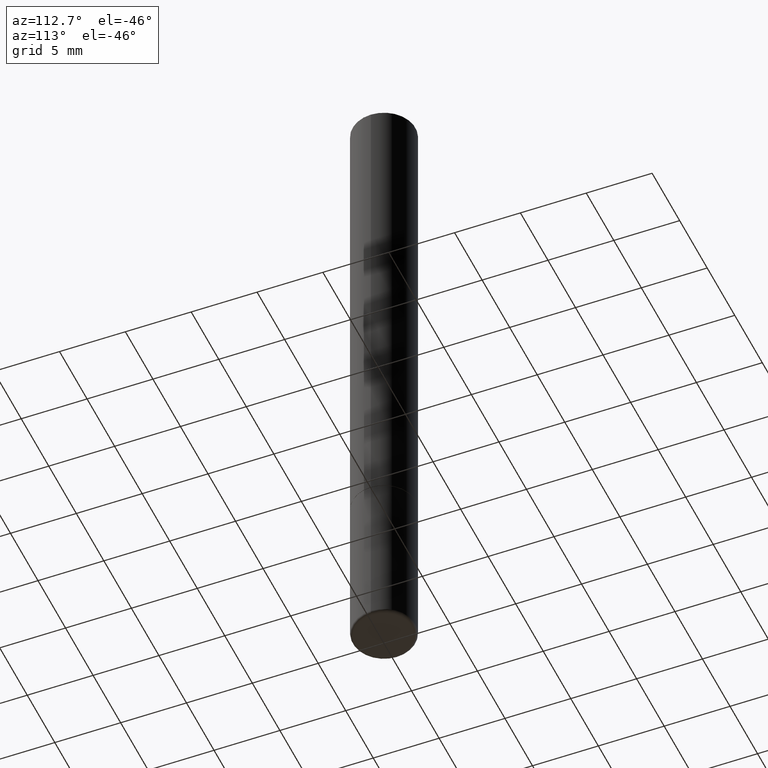
[diagram: clean part render]
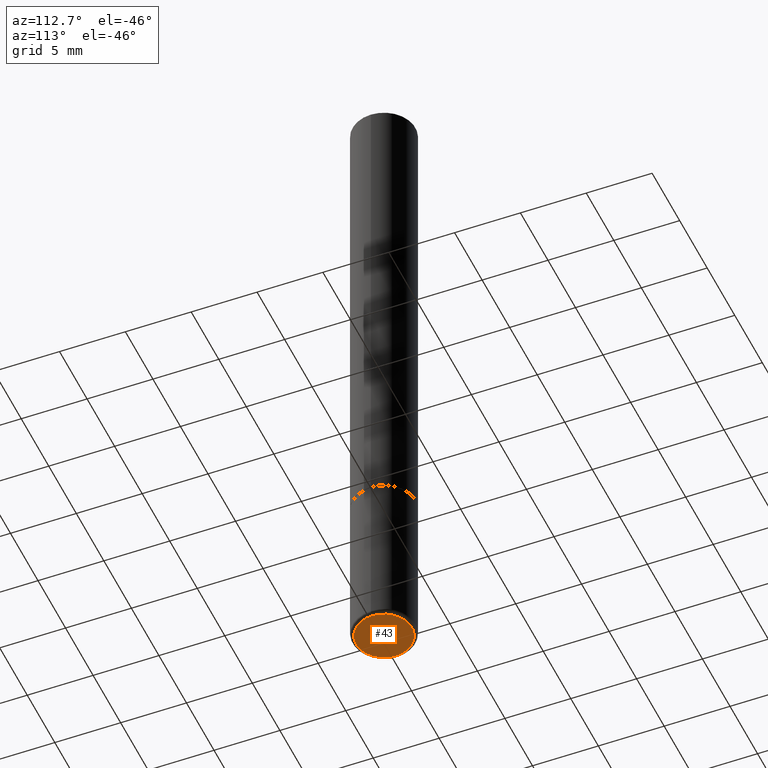
[diagram: same view with one face highlighted and labeled with its STEP entity id]
A machine part, auxiliary view. The second image highlights one B-rep face of the part: STEP entity #43.
In plain terms, the highlighted planar face has unit normal (0, -0, -1).
Its self-contained STEP definition (entity closure, byte-faithful):
#5 = ORIENTED_EDGE ( 'NONE', *, *, #49, .F. ) ;
#10 = CARTESIAN_POINT ( 'NONE',  ( 4.890937612370273194E-29, -6.982962677686291165E-15, -2.000000000000000000 ) ) ;
#34 = PLANE ( 'NONE',  #181 ) ;
#43 = ADVANCED_FACE ( 'NONE', ( #366 ), #34, .T. ) ;
#49 = EDGE_CURVE ( 'NONE', #159, #190, #142, .T. ) ;
#59 = CARTESIAN_POINT ( 'NONE',  ( 0.08375000000000000500, -7.567785801942515371E-15, -2.000000000000000000 ) ) ;
#61 = AXIS2_PLACEMENT_3D ( 'NONE', #74, #401, #248 ) ;
#64 = ORIENTED_EDGE ( 'NONE', *, *, #179, .F. ) ;
#74 = CARTESIAN_POINT ( 'NONE',  ( 4.890937612370273194E-29, -6.982962677686291165E-15, -2.000000000000000000 ) ) ;
#84 = CARTESIAN_POINT ( 'NONE',  ( -0.08375000000000000500, -6.334898593004988035E-15, -2.000000000000000000 ) ) ;
#118 = CARTESIAN_POINT ( 'NONE',  ( 4.890937612370273194E-29, -6.982962677686291165E-15, -2.000000000000000000 ) ) ;
#142 = CIRCLE ( 'NONE', #61, 0.08375000000000000500 ) ;
#159 = VERTEX_POINT ( 'NONE', #84 ) ;
#172 = AXIS2_PLACEMENT_3D ( 'NONE', #118, #351, #255 ) ;
#179 = EDGE_CURVE ( 'NONE', #190, #159, #287, .T. ) ;
#180 = DIRECTION ( 'NONE',  ( 2.438088387897960049E-29, -3.491481338843145188E-15, -1.000000000000000000 ) ) ;
#181 = AXIS2_PLACEMENT_3D ( 'NONE', #10, #180, #373 ) ;
#190 = VERTEX_POINT ( 'NONE', #59 ) ;
#248 = DIRECTION ( 'NONE',  ( 1.000000000000000000, -6.982962677686265922E-15, 0.000000000000000000 ) ) ;
#255 = DIRECTION ( 'NONE',  ( 1.000000000000000000, -6.982962677686265922E-15, 0.000000000000000000 ) ) ;
#287 = CIRCLE ( 'NONE', #172, 0.08375000000000000500 ) ;
#351 = DIRECTION ( 'NONE',  ( -2.445468806185136597E-29, 3.491481338843145583E-15, 1.000000000000000000 ) ) ;
#366 = FACE_OUTER_BOUND ( 'NONE', #391, .T. ) ;
#373 = DIRECTION ( 'NONE',  ( -1.000000000000000000, 6.982962677686265922E-15, -4.876176775795935793E-29 ) ) ;
#391 = EDGE_LOOP ( 'NONE', ( #64, #5 ) ) ;
#401 = DIRECTION ( 'NONE',  ( -2.445468806185136597E-29, 3.491481338843145583E-15, 1.000000000000000000 ) ) ;